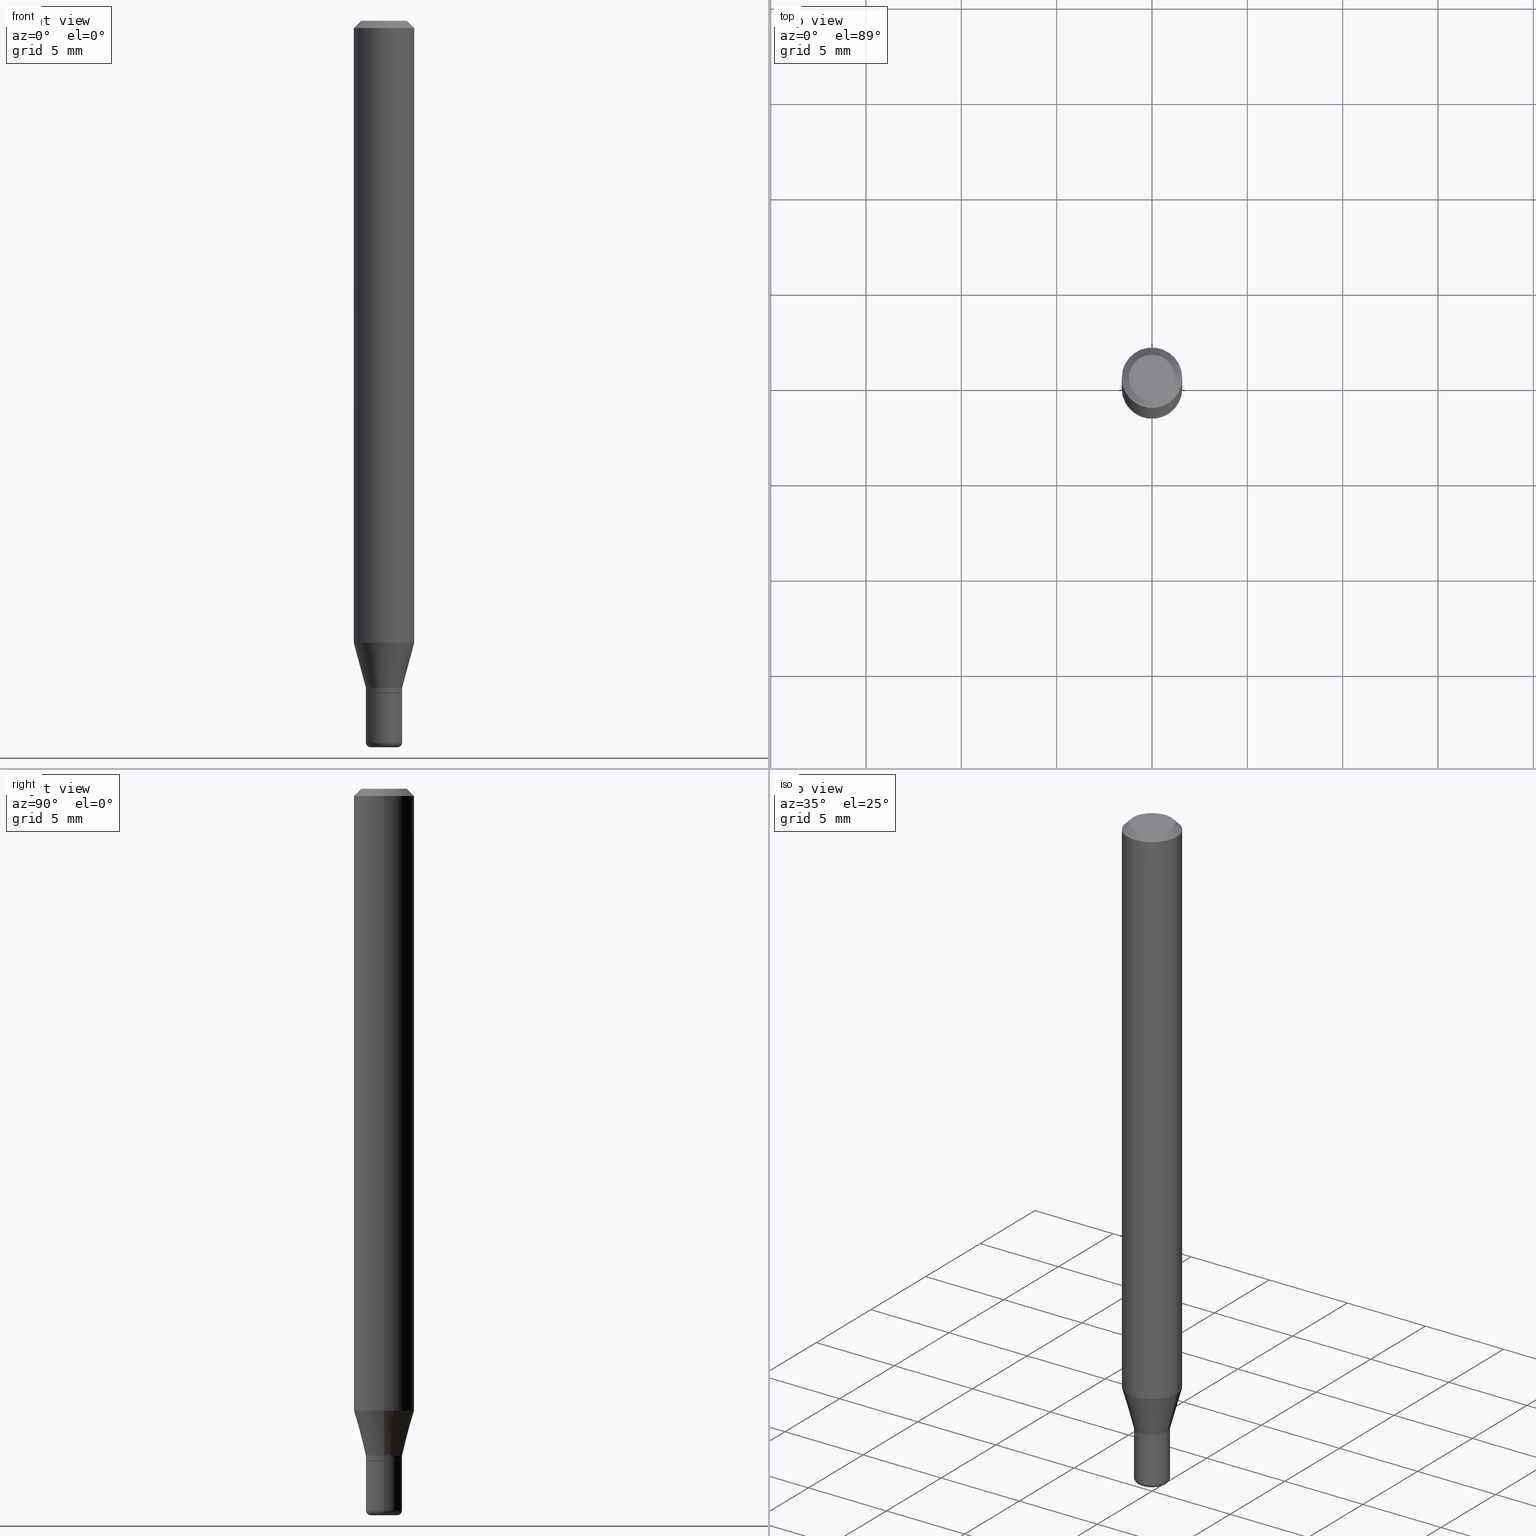
[diagram: canonical four-view strip — front | top / right | iso, engineering-drawing reading convention]
A machine part, canonical four-view strip (front | top / right | iso — engineering-drawing reading convention). The complete STEP part file that produces these views, byte-faithful:
ISO-10303-21;
HEADER;
FILE_DESCRIPTION (( 'STEP AP203' ),
    '1' );
FILE_NAME ('08553.STEP',
    '2024-02-29T19:46:23',
    ( '' ),
    ( '' ),
    'SwSTEP 2.0',
    'SolidWorks 2023',
    '' );
FILE_SCHEMA (( 'CONFIG_CONTROL_DESIGN' ));
ENDSEC;

DATA;
#1 =( LENGTH_UNIT ( ) NAMED_UNIT ( * ) SI_UNIT ( $, .METRE. ) );
#2 = CARTESIAN_POINT ( 'NONE',  ( -0.03699999999999997041, -4.581529545413629161E-15, -1.387500000000000178 ) ) ;
#3 = CARTESIAN_POINT ( 'NONE',  ( 3.643748521215853910E-29, -5.202307194876288105E-15, -1.490000000000000213 ) ) ;
#4 = EDGE_CURVE ( 'NONE', #370, #147, #41, .T. ) ;
#5 = ADVANCED_FACE ( 'NONE', ( #283 ), #440, .F. ) ;
#6 = CARTESIAN_POINT ( 'NONE',  ( 3.393087968581877252E-29, -4.844430357644865674E-15, -1.387500000000000178 ) ) ;
#7 = ORIENTED_EDGE ( 'NONE', *, *, #471, .T. ) ;
#8 = DIRECTION ( 'NONE',  ( 0.7071067811866199593, -2.468850131083015945E-15, 0.7071067811864750752 ) ) ;
#9 = ORIENTED_EDGE ( 'NONE', *, *, #400, .T. ) ;
#10 = CONICAL_SURFACE ( 'NONE', #369, 0.03699999999999997041, 0.7853981633975507526 ) ;
#11 = DATE_TIME_ROLE ( 'classification_date' ) ;
#12 = EDGE_CURVE ( 'NONE', #150, #106, #495, .T. ) ;
#13 = APPROVAL_STATUS ( 'not_yet_approved' ) ;
#14 = EDGE_LOOP ( 'NONE', ( #199, #230, #329, #449 ) ) ;
#15 = COORDINATED_UNIVERSAL_TIME_OFFSET ( 5, 0, .BEHIND. ) ;
#16 = DIRECTION ( 'NONE',  ( -2.445468806185136597E-29, 3.491481338843145583E-15, 1.000000000000000000 ) ) ;
#17 = DIRECTION ( 'NONE',  ( 1.000000000000000000, -6.982962677686266711E-15, 0.000000000000000000 ) ) ;
#18 = AXIS2_PLACEMENT_3D ( 'NONE', #424, #113, #145 ) ;
#19 = CIRCLE ( 'NONE', #309, 0.02750000000000000014 ) ;
#20 = PERSON_AND_ORGANIZATION_ROLE ( 'creator' ) ;
#21 = SECURITY_CLASSIFICATION ( '', '', #295 ) ;
#22 = CARTESIAN_POINT ( 'NONE',  ( 3.316907271900976589E-16, 0.04750000000000000749, -2.925296391183627249E-17 ) ) ;
#23 = CARTESIAN_POINT ( 'NONE',  ( 3.367410546116933466E-29, -4.807769803587011733E-15, -1.377000000000000002 ) ) ;
#24 = DIRECTION ( 'NONE',  ( -2.445468806185136877E-29, 3.491481338843145188E-15, 1.000000000000000000 ) ) ;
#25 = ADVANCED_BREP_SHAPE_REPRESENTATION ( '08553', ( #402, #419, #427 ), #504 ) ;
#26 = VERTEX_POINT ( 'NONE', #508 ) ;
#27 = AXIS2_PLACEMENT_3D ( 'NONE', #22, #211, #500 ) ;
#28 = DIRECTION ( 'NONE',  ( -2.445468806185136597E-29, 3.491481338843145583E-15, 1.000000000000000000 ) ) ;
#29 = CARTESIAN_POINT ( 'NONE',  ( 0.02750000000000000014, -5.429253481901091458E-15, -1.500000000000000222 ) ) ;
#30 = DIRECTION ( 'NONE',  ( -2.445468806185136597E-29, 3.491481338843145583E-15, 1.000000000000000000 ) ) ;
#31 = CARTESIAN_POINT ( 'NONE',  ( 0.03749999999999997780, -2.618611004132348537E-16, 1.828566290923474521E-30 ) ) ;
#32 = CARTESIAN_POINT ( 'NONE',  ( 0.000000000000000000, 0.000000000000000000, 0.000000000000000000 ) ) ;
#33 = AXIS2_PLACEMENT_3D ( 'NONE', #284, #318, #441 ) ;
#34 = EDGE_LOOP ( 'NONE', ( #506, #75, #217, #116 ) ) ;
#35 = AXIS2_PLACEMENT_3D ( 'NONE', #111, #515, #460 ) ;
#36 = ORIENTED_EDGE ( 'NONE', *, *, #335, .F. ) ;
#37 = DIRECTION ( 'NONE',  ( -1.000000000000000000, 6.982962677686266711E-15, 0.000000000000000000 ) ) ;
#38 = ORIENTED_EDGE ( 'NONE', *, *, #12, .T. ) ;
#39 = DIRECTION ( 'NONE',  ( -2.445468806185136597E-29, 3.491481338843145583E-15, 1.000000000000000000 ) ) ;
#40 = CC_DESIGN_PERSON_AND_ORGANIZATION_ASSIGNMENT ( #249, #20, ( #98 ) ) ;
#41 = LINE ( 'NONE', #2, #334 ) ;
#42 = PLANE ( 'NONE',  #296 ) ;
#43 = CLOSED_SHELL ( 'NONE', ( #429, #319, #496, #372, #103, #203, #317, #459, #5, #168, #311, #516 ) ) ;
#44 = ADVANCED_FACE ( 'NONE', ( #100 ), #484, .T. ) ;
#45 = CARTESIAN_POINT ( 'NONE',  ( 3.668203209277632395E-31, -5.237222008264614861E-17, -0.01499999999999970281 ) ) ;
#46 = CYLINDRICAL_SURFACE ( 'NONE', #503, 0.03749999999999997086 ) ;
#47 = EDGE_CURVE ( 'NONE', #388, #312, #76, .T. ) ;
#48 = LINE ( 'NONE', #494, #379 ) ;
#49 = ADVANCED_FACE ( 'NONE', ( #447 ), #360, .T. ) ;
#50 = COORDINATED_UNIVERSAL_TIME_OFFSET ( 5, 0, .BEHIND. ) ;
#51 = AXIS2_PLACEMENT_3D ( 'NONE', #45, #390, #37 ) ;
#52 = VERTEX_POINT ( 'NONE', #88 ) ;
#53 = APPROVAL_ROLE ( '' ) ;
#54 = LINE ( 'NONE', #206, #512 ) ;
#55 = COORDINATED_UNIVERSAL_TIME_OFFSET ( 5, 0, .BEHIND. ) ;
#56 = LOCAL_TIME ( 14, 46, 23.00000000000000000, #55 ) ;
#57 = ORIENTED_EDGE ( 'NONE', *, *, #4, .T. ) ;
#58 = DIRECTION ( 'NONE',  ( -2.445468806185136597E-29, 3.491481338843145583E-15, 1.000000000000000000 ) ) ;
#59 = CARTESIAN_POINT ( 'NONE',  ( -0.03699999999999997041, -4.578880318239517960E-15, -1.387500000000000178 ) ) ;
#60 = ORIENTED_EDGE ( 'NONE', *, *, #12, .F. ) ;
#61 = ORIENTED_EDGE ( 'NONE', *, *, #222, .T. ) ;
#62 = CIRCLE ( 'NONE', #79, 0.03749999999999997086 ) ;
#63 = DIRECTION ( 'NONE',  ( -2.445468806185136877E-29, 3.491481338843145188E-15, 1.000000000000000000 ) ) ;
#64 = ORIENTED_EDGE ( 'NONE', *, *, #83, .F. ) ;
#65 = CYLINDRICAL_SURFACE ( 'NONE', #154, 0.03749999999999997086 ) ;
#66 = CARTESIAN_POINT ( 'NONE',  ( 0.03749999999999997086, -2.618611004132348044E-16, 1.828566290923474521E-30 ) ) ;
#67 = ORIENTED_EDGE ( 'NONE', *, *, #265, .T. ) ;
#68 = CARTESIAN_POINT ( 'NONE',  ( -0.03749999999999997780, -4.289618613828946171E-15, -1.377000000000000002 ) ) ;
#69 = CARTESIAN_POINT ( 'NONE',  ( 3.643748521215853910E-29, -5.202307194876288105E-15, -1.490000000000000213 ) ) ;
#70 = AXIS2_PLACEMENT_3D ( 'NONE', #511, #142, #470 ) ;
#71 = PRODUCT_RELATED_PRODUCT_CATEGORY ( 'detail', '', ( #241 ) ) ;
#72 = CARTESIAN_POINT ( 'NONE',  ( 3.391865234178785011E-29, -4.842684616975444171E-15, -1.387000000000000233 ) ) ;
#73 = VERTEX_POINT ( 'NONE', #167 ) ;
#74 = CARTESIAN_POINT ( 'NONE',  ( 3.367410546116933466E-29, -4.807769803587011733E-15, -1.377000000000000002 ) ) ;
#75 = ORIENTED_EDGE ( 'NONE', *, *, #229, .T. ) ;
#76 = LINE ( 'NONE', #478, #501 ) ;
#77 = CARTESIAN_POINT ( 'NONE',  ( 3.668203209277632395E-31, -5.237222008264614861E-17, -0.01499999999999970281 ) ) ;
#78 = VECTOR ( 'NONE', #464, 39.37007874015748143 ) ;
#79 = AXIS2_PLACEMENT_3D ( 'NONE', #407, #102, #97 ) ;
#80 = PLANE ( 'NONE',  #367 ) ;
#81 = CARTESIAN_POINT ( 'NONE',  ( 0.000000000000000000, 0.000000000000000000, 0.000000000000000000 ) ) ;
#82 = EDGE_CURVE ( 'NONE', #106, #192, #48, .T. ) ;
#83 = EDGE_CURVE ( 'NONE', #312, #174, #396, .T. ) ;
#84 = CARTESIAN_POINT ( 'NONE',  ( 3.393087968581877252E-29, -4.844430357644865674E-15, -1.387500000000000178 ) ) ;
#85 = CALENDAR_DATE ( 2024, 29, 2 ) ;
#86 = DATE_AND_TIME ( #85, #246 ) ;
#87 = ORIENTED_EDGE ( 'NONE', *, *, #339, .T. ) ;
#88 = CARTESIAN_POINT ( 'NONE',  ( 0.03749999999999999861, -5.106291458058100676E-15, -1.387500000000000178 ) ) ;
#89 = AXIS2_PLACEMENT_3D ( 'NONE', #218, #376, #298 ) ;
#90 = AXIS2_PLACEMENT_3D ( 'NONE', #505, #377, #179 ) ;
#91 = DIRECTION ( 'NONE',  ( 1.000000000000000000, -6.982962677686272233E-15, 0.000000000000000000 ) ) ;
#92 = PERSON_AND_ORGANIZATION_ROLE ( 'design_owner' ) ;
#93 = EDGE_CURVE ( 'NONE', #139, #150, #231, .T. ) ;
#94 = CARTESIAN_POINT ( 'NONE',  ( -0.06250000000000000000, -1.823101980106750651E-15, -0.01499999999999970281 ) ) ;
#95 = APPROVAL_DATE_TIME ( #492, #143 ) ;
#96 = APPROVAL ( #454, 'UNSPECIFIED' ) ;
#97 = DIRECTION ( 'NONE',  ( 1.000000000000000000, -6.982962677686273810E-15, 0.000000000000000000 ) ) ;
#98 = PRODUCT_DEFINITION_FORMATION_WITH_SPECIFIED_SOURCE ( 'ANY', '', #241, .NOT_KNOWN. ) ;
#99 = AXIS2_PLACEMENT_3D ( 'NONE', #263, #374, #137 ) ;
#100 = FACE_OUTER_BOUND ( 'NONE', #375, .T. ) ;
#101 = CARTESIAN_POINT ( 'NONE',  ( 0.03749999999999994310, -5.464168295289523107E-15, -1.490000000000000213 ) ) ;
#102 = DIRECTION ( 'NONE',  ( -2.445468806185136597E-29, 3.491481338843145583E-15, 1.000000000000000000 ) ) ;
#103 = ADVANCED_FACE ( 'NONE', ( #215 ), #151, .T. ) ;
#104 = FACE_OUTER_BOUND ( 'NONE', #381, .T. ) ;
#105 = DIRECTION ( 'NONE',  ( 1.000000000000000000, -6.982962677686265922E-15, 4.876176775795935793E-29 ) ) ;
#106 = VERTEX_POINT ( 'NONE', #412 ) ;
#107 = LINE ( 'NONE', #387, #232 ) ;
#108 = VECTOR ( 'NONE', #401, 39.37007874015748143 ) ;
#109 = FACE_OUTER_BOUND ( 'NONE', #202, .T. ) ;
#110 = ORIENTED_EDGE ( 'NONE', *, *, #409, .T. ) ;
#111 = CARTESIAN_POINT ( 'NONE',  ( 0.02749999999999999667, -5.394338668512660598E-15, -1.490000000000000213 ) ) ;
#112 = CARTESIAN_POINT ( 'NONE',  ( -0.03749999999999999861, -4.756915250350539872E-15, -1.387500000000000178 ) ) ;
#113 = DIRECTION ( 'NONE',  ( -2.445468806185136597E-29, 3.491481338843145583E-15, 1.000000000000000000 ) ) ;
#114 = DIRECTION ( 'NONE',  ( -2.445468806185136597E-29, 3.491481338843145583E-15, 1.000000000000000000 ) ) ;
#115 = AXIS2_PLACEMENT_3D ( 'NONE', #69, #393, #352 ) ;
#116 = ORIENTED_EDGE ( 'NONE', *, *, #132, .F. ) ;
#117 = LOCAL_TIME ( 14, 46, 23.00000000000000000, #50 ) ;
#118 = DIRECTION ( 'NONE',  ( 1.000000000000000000, -6.982962677686279332E-15, 0.000000000000000000 ) ) ;
#119 = ORIENTED_EDGE ( 'NONE', *, *, #148, .T. ) ;
#120 = DIRECTION ( 'NONE',  ( -2.445468806185136877E-29, 3.491481338843145188E-15, 1.000000000000000000 ) ) ;
#121 = CARTESIAN_POINT ( 'NONE',  ( 3.668203209277704895E-29, -5.237222008264718177E-15, -1.500000000000000222 ) ) ;
#122 = EDGE_CURVE ( 'NONE', #213, #388, #386, .T. ) ;
#123 = DIRECTION ( 'NONE',  ( -2.445468806185136597E-29, 3.491481338843145583E-15, 1.000000000000000000 ) ) ;
#124 = CONICAL_SURFACE ( 'NONE', #469, 0.03749999999999997780, 0.2617993877991492413 ) ;
#125 = CIRCLE ( 'NONE', #171, 0.03749999999999997780 ) ;
#126 = COORDINATED_UNIVERSAL_TIME_OFFSET ( 5, 0, .BEHIND. ) ;
#127 = COORDINATED_UNIVERSAL_TIME_OFFSET ( 5, 0, .BEHIND. ) ;
#128 = DIRECTION ( 'NONE',  ( -2.445468806185136877E-29, 3.491481338843145188E-15, 1.000000000000000000 ) ) ;
#129 = LOCAL_TIME ( 14, 46, 23.00000000000000000, #15 ) ;
#130 = PERSON ( 'UNSPECIFIED', 'UNSPECIFIED', 'UNSPECIFIED', ('UNSPECIFIED'), ('UNSPECIFIED'), ('UNSPECIFIED') ) ;
#131 = DATE_AND_TIME ( #499, #117 ) ;
#132 = EDGE_CURVE ( 'NONE', #73, #388, #468, .T. ) ;
#133 = ORIENTED_EDGE ( 'NONE', *, *, #452, .F. ) ;
#134 = AXIS2_PLACEMENT_3D ( 'NONE', #348, #260, #266 ) ;
#135 = CIRCLE ( 'NONE', #35, 0.009999999999999948166 ) ;
#136 = CARTESIAN_POINT ( 'NONE',  ( 3.393087968581877252E-29, -4.844430357644865674E-15, -1.387500000000000178 ) ) ;
#137 = DIRECTION ( 'NONE',  ( 1.000000000000000000, -6.982962677686266711E-15, 0.000000000000000000 ) ) ;
#138 = CARTESIAN_POINT ( 'NONE',  ( 0.03749999999999997086, -5.104545717388679172E-15, -1.387000000000000233 ) ) ;
#139 = VERTEX_POINT ( 'NONE', #29 ) ;
#140 = LINE ( 'NONE', #31, #485 ) ;
#141 = AXIS2_PLACEMENT_3D ( 'NONE', #345, #30, #343 ) ;
#142 = DIRECTION ( 'NONE',  ( -2.445468806185136597E-29, 3.491481338843145583E-15, 1.000000000000000000 ) ) ;
#143 = APPROVAL ( #415, 'UNSPECIFIED' ) ;
#144 = APPROVAL_PERSON_ORGANIZATION ( #328, #172, #326 ) ;
#145 = DIRECTION ( 'NONE',  ( 1.000000000000000000, -6.982962677686268288E-15, 0.000000000000000000 ) ) ;
#146 = DIRECTION ( 'NONE',  ( 1.000000000000000000, -6.982962677686259611E-15, 0.000000000000000000 ) ) ;
#147 = VERTEX_POINT ( 'NONE', #182 ) ;
#148 = EDGE_CURVE ( 'NONE', #52, #192, #242, .T. ) ;
#149 = DIRECTION ( 'NONE',  ( -2.445468806185136597E-29, 3.491481338843145583E-15, 1.000000000000000000 ) ) ;
#150 = VERTEX_POINT ( 'NONE', #275 ) ;
#151 = CONICAL_SURFACE ( 'NONE', #451, 0.03749999999999997780, 0.2617993877991492413 ) ;
#152 = FACE_OUTER_BOUND ( 'NONE', #437, .T. ) ;
#153 = VERTEX_POINT ( 'NONE', #68 ) ;
#154 = AXIS2_PLACEMENT_3D ( 'NONE', #421, #342, #509 ) ;
#155 = DIRECTION ( 'NONE',  ( -0.7071067811866199593, 7.493145998870616062E-15, 0.7071067811864750752 ) ) ;
#156 = DIRECTION ( 'NONE',  ( 1.000000000000000000, -6.982962677686268288E-15, 0.000000000000000000 ) ) ;
#157 = DIRECTION ( 'NONE',  ( -2.445468806185136597E-29, 3.491481338843145583E-15, 1.000000000000000000 ) ) ;
#158 = DIRECTION ( 'NONE',  ( -2.445468806185136597E-29, 3.491481338843145583E-15, 1.000000000000000000 ) ) ;
#159 = APPROVAL_DATE_TIME ( #86, #172 ) ;
#160 = ORIENTED_EDGE ( 'NONE', *, *, #325, .F. ) ;
#161 = AXIS2_PLACEMENT_3D ( 'NONE', #456, #254, #17 ) ;
#162 = ORIENTED_EDGE ( 'NONE', *, *, #507, .F. ) ;
#163 = DIRECTION ( 'NONE',  ( -0.7071067811865479058, 2.468850131082261005E-15, -0.7071067811865471286 ) ) ;
#164 = AXIS2_PLACEMENT_3D ( 'NONE', #420, #462, #146 ) ;
#165 =( NAMED_UNIT ( * ) PLANE_ANGLE_UNIT ( ) SI_UNIT ( $, .RADIAN. ) );
#166 = ORIENTED_EDGE ( 'NONE', *, *, #265, .F. ) ;
#167 = CARTESIAN_POINT ( 'NONE',  ( -0.06250000000000000000, -4.037920949980918021E-15, -1.283698729810778039 ) ) ;
#168 = ADVANCED_FACE ( 'NONE', ( #243 ), #80, .F. ) ;
#169 = CARTESIAN_POINT ( 'NONE',  ( 0.000000000000000000, 0.000000000000000000, 0.000000000000000000 ) ) ;
#170 = CARTESIAN_POINT ( 'NONE',  ( 3.668203209277704895E-29, -5.237222008264718177E-15, -1.500000000000000222 ) ) ;
#171 = AXIS2_PLACEMENT_3D ( 'NONE', #422, #58, #305 ) ;
#172 = APPROVAL ( #13, 'UNSPECIFIED' ) ;
#173 = SHAPE_DEFINITION_REPRESENTATION ( #488, #25 ) ;
#174 = VERTEX_POINT ( 'NONE', #94 ) ;
#175 = ORIENTED_EDGE ( 'NONE', *, *, #480, .F. ) ;
#176 = LINE ( 'NONE', #66, #316 ) ;
#177 = ORIENTED_EDGE ( 'NONE', *, *, #384, .T. ) ;
#178 = CONICAL_SURFACE ( 'NONE', #257, 0.06250000000000000000, 0.7853981633974488341 ) ;
#179 = DIRECTION ( 'NONE',  ( 1.000000000000000000, -6.982962677686266711E-15, 4.876176775795935793E-29 ) ) ;
#180 = ORIENTED_EDGE ( 'NONE', *, *, #514, .F. ) ;
#181 = EDGE_CURVE ( 'NONE', #73, #174, #413, .T. ) ;
#182 = CARTESIAN_POINT ( 'NONE',  ( -0.03749999999999997086, -4.576231091065406759E-15, -1.387000000000000233 ) ) ;
#183 = CARTESIAN_POINT ( 'NONE',  ( 0.04750000000000000749, -4.035134999187568762E-16, 2.731847993664288856E-16 ) ) ;
#184 = CC_DESIGN_PERSON_AND_ORGANIZATION_ASSIGNMENT ( #486, #92, ( #241 ) ) ;
#185 = DIRECTION ( 'NONE',  ( 1.000000000000000000, -6.982962677686259611E-15, 0.000000000000000000 ) ) ;
#186 = CC_DESIGN_DATE_AND_TIME_ASSIGNMENT ( #131, #11, ( #21 ) ) ;
#187 = CARTESIAN_POINT ( 'NONE',  ( 0.03749999999999997780, -5.069630904000246734E-15, -1.377000000000000002 ) ) ;
#188 = FACE_OUTER_BOUND ( 'NONE', #356, .T. ) ;
#189 = FACE_OUTER_BOUND ( 'NONE', #428, .T. ) ;
#190 = FACE_OUTER_BOUND ( 'NONE', #34, .T. ) ;
#191 = DIRECTION ( 'NONE',  ( 1.000000000000000000, -6.982962677686272233E-15, 0.000000000000000000 ) ) ;
#192 = VERTEX_POINT ( 'NONE', #112 ) ;
#193 = CLOSED_SHELL ( 'NONE', ( #49, #482, #286, #366, #44, #491 ) ) ;
#194 = FACE_OUTER_BOUND ( 'NONE', #238, .T. ) ;
#195 = CIRCLE ( 'NONE', #99, 0.06250000000000000000 ) ;
#196 = CC_DESIGN_APPROVAL ( #172, ( #98 ) ) ;
#197 = DIRECTION ( 'NONE',  ( -2.445468806185136597E-29, 3.491481338843145583E-15, 1.000000000000000000 ) ) ;
#198 = DIRECTION ( 'NONE',  ( 2.445468806185136597E-29, -3.491481338843145583E-15, -1.000000000000000000 ) ) ;
#199 = ORIENTED_EDGE ( 'NONE', *, *, #471, .F. ) ;
#200 = CIRCLE ( 'NONE', #115, 0.03749999999999994310 ) ;
#201 =( NAMED_UNIT ( * ) SI_UNIT ( $, .STERADIAN. ) SOLID_ANGLE_UNIT ( ) );
#202 = EDGE_LOOP ( 'NONE', ( #291, #353, #463, #487 ) ) ;
#203 = ADVANCED_FACE ( 'NONE', ( #190 ), #124, .T. ) ;
#204 = MECHANICAL_CONTEXT ( 'NONE', #383, 'mechanical' ) ;
#205 = CALENDAR_DATE ( 2024, 29, 2 ) ;
#206 = CARTESIAN_POINT ( 'NONE',  ( -0.06250000000000000000, 3.840629472727455270E-16, -0.01499999999999970281 ) ) ;
#207 = VECTOR ( 'NONE', #308, 39.37007874015748143 ) ;
#208 = AXIS2_PLACEMENT_3D ( 'NONE', #216, #28, #261 ) ;
#209 = EDGE_CURVE ( 'NONE', #26, #174, #54, .T. ) ;
#210 = CC_DESIGN_APPROVAL ( #143, ( #336 ) ) ;
#211 = DIRECTION ( 'NONE',  ( 2.438088387897960049E-29, -3.491481338843145188E-15, -1.000000000000000000 ) ) ;
#212 = DATE_AND_TIME ( #205, #56 ) ;
#213 = VERTEX_POINT ( 'NONE', #294 ) ;
#214 = APPLICATION_CONTEXT ( 'configuration controlled 3d designs of mechanical parts and assemblies' ) ;
#215 = FACE_OUTER_BOUND ( 'NONE', #476, .T. ) ;
#216 = CARTESIAN_POINT ( 'NONE',  ( -6.680649051745406845E-45, 9.538196290434862081E-31, 2.731847993664263218E-16 ) ) ;
#217 = ORIENTED_EDGE ( 'NONE', *, *, #122, .T. ) ;
#218 = CARTESIAN_POINT ( 'NONE',  ( -0.02749999999999999667, -5.006907942542259986E-15, -1.490000000000000213 ) ) ;
#219 = CYLINDRICAL_SURFACE ( 'NONE', #327, 0.06250000000000000000 ) ;
#220 = EDGE_LOOP ( 'NONE', ( #240, #418, #64, #406 ) ) ;
#221 = AXIS2_PLACEMENT_3D ( 'NONE', #473, #197, #517 ) ;
#222 = EDGE_CURVE ( 'NONE', #147, #306, #62, .T. ) ;
#223 = AXIS2_PLACEMENT_3D ( 'NONE', #248, #39, #281 ) ;
#224 = DIRECTION ( 'NONE',  ( -2.445468806185136597E-29, 3.491481338843145583E-15, 1.000000000000000000 ) ) ;
#225 = EDGE_CURVE ( 'NONE', #174, #312, #195, .T. ) ;
#226 = ORIENTED_EDGE ( 'NONE', *, *, #222, .F. ) ;
#227 = CYLINDRICAL_SURFACE ( 'NONE', #90, 0.06250000000000000000 ) ;
#228 = DIRECTION ( 'NONE',  ( -0.2588190451025205729, 5.211531920934545520E-15, 0.9659258262890684232 ) ) ;
#229 = EDGE_CURVE ( 'NONE', #153, #213, #125, .T. ) ;
#230 = ORIENTED_EDGE ( 'NONE', *, *, #384, .F. ) ;
#231 = CIRCLE ( 'NONE', #378, 0.02750000000000000014 ) ;
#232 = VECTOR ( 'NONE', #24, 39.37007874015748143 ) ;
#233 = CYLINDRICAL_SURFACE ( 'NONE', #223, 0.03749999999999997780 ) ;
#234 = LOCAL_TIME ( 14, 46, 23.00000000000000000, #126 ) ;
#235 = ORIENTED_EDGE ( 'NONE', *, *, #335, .T. ) ;
#236 = VERTEX_POINT ( 'NONE', #385 ) ;
#237 = LENGTH_MEASURE_WITH_UNIT ( LENGTH_MEASURE( 0.02539999999999999897 ), #1 );
#238 = EDGE_LOOP ( 'NONE', ( #166, #61, #87, #337 ) ) ;
#239 = DIRECTION ( 'NONE',  ( -2.438088387897960049E-29, 3.491481338843145188E-15, 1.000000000000000000 ) ) ;
#240 = ORIENTED_EDGE ( 'NONE', *, *, #325, .T. ) ;
#241 = PRODUCT ( '08553', '08553', '', ( #204 ) ) ;
#242 = CIRCLE ( 'NONE', #18, 0.03749999999999999861 ) ;
#243 = FACE_OUTER_BOUND ( 'NONE', #414, .T. ) ;
#244 = CARTESIAN_POINT ( 'NONE',  ( 0.000000000000000000, 0.000000000000000000, 0.000000000000000000 ) ) ;
#245 = CIRCLE ( 'NONE', #70, 0.04750000000000000749 ) ;
#246 = LOCAL_TIME ( 14, 46, 23.00000000000000000, #127 ) ;
#247 = EDGE_CURVE ( 'NONE', #394, #52, #176, .T. ) ;
#248 = CARTESIAN_POINT ( 'NONE',  ( 0.000000000000000000, 0.000000000000000000, 0.000000000000000000 ) ) ;
#249 = PERSON_AND_ORGANIZATION ( #130, #302 ) ;
#250 = ORIENTED_EDGE ( 'NONE', *, *, #82, .T. ) ;
#251 = EDGE_CURVE ( 'NONE', #236, #370, #301, .T. ) ;
#252 = ORIENTED_EDGE ( 'NONE', *, *, #480, .T. ) ;
#253 = AXIS2_PLACEMENT_3D ( 'NONE', #136, #224, #185 ) ;
#254 = DIRECTION ( 'NONE',  ( -2.445468806185136597E-29, 3.491481338843145583E-15, 1.000000000000000000 ) ) ;
#255 = CALENDAR_DATE ( 2024, 29, 2 ) ;
#256 = PERSON_AND_ORGANIZATION_ROLE ( 'design_supplier' ) ;
#257 = AXIS2_PLACEMENT_3D ( 'NONE', #77, #198, #314 ) ;
#258 = ORIENTED_EDGE ( 'NONE', *, *, #392, .F. ) ;
#259 = CARTESIAN_POINT ( 'NONE',  ( 0.06250000000000000000, -4.918445327186372307E-15, -1.283698729810778039 ) ) ;
#260 = DIRECTION ( 'NONE',  ( -2.445468806185136597E-29, 3.491481338843145583E-15, 1.000000000000000000 ) ) ;
#261 = DIRECTION ( 'NONE',  ( 1.000000000000000000, -6.982962677686266711E-15, 4.852736867747365086E-29 ) ) ;
#262 = EDGE_CURVE ( 'NONE', #153, #73, #502, .T. ) ;
#263 = CARTESIAN_POINT ( 'NONE',  ( 3.668203209277632395E-31, -5.237222008264614861E-17, -0.01499999999999970281 ) ) ;
#264 = ORIENTED_EDGE ( 'NONE', *, *, #436, .T. ) ;
#265 = EDGE_CURVE ( 'NONE', #147, #153, #107, .T. ) ;
#266 = DIRECTION ( 'NONE',  ( 1.000000000000000000, -6.982962677686262766E-15, 0.000000000000000000 ) ) ;
#267 = PLANE ( 'NONE',  #453 ) ;
#268 = ORIENTED_EDGE ( 'NONE', *, *, #93, .F. ) ;
#269 = CONICAL_SURFACE ( 'NONE', #253, 0.03699999999999997041, 0.7853981633975507526 ) ;
#270 = CC_DESIGN_SECURITY_CLASSIFICATION ( #21, ( #98 ) ) ;
#271 = DIRECTION ( 'NONE',  ( 1.000000000000000000, -6.982962677686259611E-15, 0.000000000000000000 ) ) ;
#272 = ORIENTED_EDGE ( 'NONE', *, *, #83, .T. ) ;
#273 = CARTESIAN_POINT ( 'NONE',  ( 3.367410546116933466E-29, -4.807769803587011733E-15, -1.377000000000000002 ) ) ;
#274 = FACE_OUTER_BOUND ( 'NONE', #445, .T. ) ;
#275 = CARTESIAN_POINT ( 'NONE',  ( -0.02750000000000000014, -4.988838212448470770E-15, -1.500000000000000222 ) ) ;
#276 = CARTESIAN_POINT ( 'NONE',  ( 0.03699999999999997041, -5.102799976719256880E-15, -1.387500000000000178 ) ) ;
#277 = AXIS2_PLACEMENT_3D ( 'NONE', #324, #158, #450 ) ;
#278 = CONICAL_SURFACE ( 'NONE', #51, 0.06250000000000000000, 0.7853981633974488341 ) ;
#279 = APPROVAL_PERSON_ORGANIZATION ( #411, #96, #53 ) ;
#280 = ORIENTED_EDGE ( 'NONE', *, *, #400, .F. ) ;
#281 = DIRECTION ( 'NONE',  ( 1.000000000000000000, -6.982962677686266711E-15, 4.876176775795934672E-29 ) ) ;
#282 = ORIENTED_EDGE ( 'NONE', *, *, #392, .T. ) ;
#283 = FACE_OUTER_BOUND ( 'NONE', #364, .T. ) ;
#284 = CARTESIAN_POINT ( 'NONE',  ( 3.643748521215853910E-29, -5.202307194876288105E-15, -1.490000000000000213 ) ) ;
#285 = DIRECTION ( 'NONE',  ( 1.000000000000000000, -6.982962677686273810E-15, 0.000000000000000000 ) ) ;
#286 = ADVANCED_FACE ( 'NONE', ( #274 ), #267, .F. ) ;
#287 = CARTESIAN_POINT ( 'NONE',  ( 0.06250000000000000000, -4.811533449433669144E-16, -0.01499999999999970281 ) ) ;
#288 = AXIS2_PLACEMENT_3D ( 'NONE', #72, #123, #285 ) ;
#289 = CC_DESIGN_DATE_AND_TIME_ASSIGNMENT ( #297, #446, ( #336 ) ) ;
#290 = CALENDAR_DATE ( 2024, 29, 2 ) ;
#291 = ORIENTED_EDGE ( 'NONE', *, *, #181, .F. ) ;
#292 = PERSON_AND_ORGANIZATION ( #130, #302 ) ;
#293 = ORIENTED_EDGE ( 'NONE', *, *, #122, .F. ) ;
#294 = CARTESIAN_POINT ( 'NONE',  ( 0.03749999999999997780, -5.069630904000246734E-15, -1.377000000000000002 ) ) ;
#295 = SECURITY_CLASSIFICATION_LEVEL ( 'unclassified' ) ;
#296 = AXIS2_PLACEMENT_3D ( 'NONE', #444, #239, #398 ) ;
#297 = DATE_AND_TIME ( #290, #234 ) ;
#298 = DIRECTION ( 'NONE',  ( -1.000000000000000000, 7.105427357600962416E-15, 0.000000000000000000 ) ) ;
#299 = ORIENTED_EDGE ( 'NONE', *, *, #339, .F. ) ;
#300 = DIRECTION ( 'NONE',  ( -2.438088387897960049E-29, 3.491481338843145188E-15, 1.000000000000000000 ) ) ;
#301 = CIRCLE ( 'NONE', #164, 0.03699999999999997041 ) ;
#302 = ORGANIZATION ( 'UNSPECIFIED', 'UNSPECIFIED', '' ) ;
#303 = ORIENTED_EDGE ( 'NONE', *, *, #4, .F. ) ;
#304 = DIRECTION ( 'NONE',  ( 1.000000000000000000, -6.982962677686266711E-15, 4.876176775795935793E-29 ) ) ;
#305 = DIRECTION ( 'NONE',  ( 1.000000000000000000, -6.982962677686272233E-15, 0.000000000000000000 ) ) ;
#306 = VERTEX_POINT ( 'NONE', #138 ) ;
#307 = CARTESIAN_POINT ( 'NONE',  ( 0.06250000000000000000, -4.888073874380378612E-16, -0.01499999999999970281 ) ) ;
#308 = DIRECTION ( 'NONE',  ( -2.445468806185136877E-29, 3.491481338843145188E-15, 1.000000000000000000 ) ) ;
#309 = AXIS2_PLACEMENT_3D ( 'NONE', #121, #157, #118 ) ;
#310 = CARTESIAN_POINT ( 'NONE',  ( 3.393087968581877252E-29, -4.844430357644865674E-15, -1.387500000000000178 ) ) ;
#311 = ADVANCED_FACE ( 'NONE', ( #338 ), #269, .T. ) ;
#312 = VERTEX_POINT ( 'NONE', #307 ) ;
#313 =( CONVERSION_BASED_UNIT ( 'INCH', #237 ) LENGTH_UNIT ( ) NAMED_UNIT ( #431 ) );
#314 = DIRECTION ( 'NONE',  ( -1.000000000000000000, 6.982962677686266711E-15, 0.000000000000000000 ) ) ;
#315 = ORIENTED_EDGE ( 'NONE', *, *, #209, .F. ) ;
#316 = VECTOR ( 'NONE', #63, 39.37007874015748143 ) ;
#317 = ADVANCED_FACE ( 'NONE', ( #109 ), #219, .T. ) ;
#318 = DIRECTION ( 'NONE',  ( -2.445468806185136597E-29, 3.491481338843145583E-15, 1.000000000000000000 ) ) ;
#319 = ADVANCED_FACE ( 'NONE', ( #188 ), #10, .T. ) ;
#320 = DIRECTION ( 'NONE',  ( -2.445468806185136597E-29, 3.491481338843145583E-15, 1.000000000000000000 ) ) ;
#321 = ORIENTED_EDGE ( 'NONE', *, *, #247, .F. ) ;
#322 = FACE_OUTER_BOUND ( 'NONE', #341, .T. ) ;
#323 = ORIENTED_EDGE ( 'NONE', *, *, #262, .T. ) ;
#324 = CARTESIAN_POINT ( 'NONE',  ( 3.643748521215853910E-29, -5.202307194876288105E-15, -1.490000000000000213 ) ) ;
#325 = EDGE_CURVE ( 'NONE', #388, #73, #417, .T. ) ;
#326 = APPROVAL_ROLE ( '' ) ;
#327 = AXIS2_PLACEMENT_3D ( 'NONE', #32, #425, #304 ) ;
#328 = PERSON_AND_ORGANIZATION ( #130, #302 ) ;
#329 = ORIENTED_EDGE ( 'NONE', *, *, #209, .T. ) ;
#330 = PERSON_AND_ORGANIZATION ( #130, #302 ) ;
#331 = ORIENTED_EDGE ( 'NONE', *, *, #416, .F. ) ;
#332 = DESIGN_CONTEXT ( 'detailed design', #214, 'design' ) ;
#333 = PERSON_AND_ORGANIZATION_ROLE ( 'creator' ) ;
#334 = VECTOR ( 'NONE', #155, 39.37007874015748143 ) ;
#335 = EDGE_CURVE ( 'NONE', #346, #26, #397, .T. ) ;
#336 = PRODUCT_DEFINITION ( 'UNKNOWN', '', #98, #332 ) ;
#337 = ORIENTED_EDGE ( 'NONE', *, *, #229, .F. ) ;
#338 = FACE_OUTER_BOUND ( 'NONE', #510, .T. ) ;
#339 = EDGE_CURVE ( 'NONE', #306, #213, #140, .T. ) ;
#340 = AXIS2_PLACEMENT_3D ( 'NONE', #3, #320, #391 ) ;
#341 = EDGE_LOOP ( 'NONE', ( #36, #7, #272, #315 ) ) ;
#342 = DIRECTION ( 'NONE',  ( -2.445468806185136597E-29, 3.491481338843145583E-15, 1.000000000000000000 ) ) ;
#343 = DIRECTION ( 'NONE',  ( 1.000000000000000000, -6.982962677686262766E-15, 0.000000000000000000 ) ) ;
#344 = CARTESIAN_POINT ( 'NONE',  ( -0.06250000000000000000, 4.440892098500626162E-16, -3.074334431409316114E-30 ) ) ;
#345 = CARTESIAN_POINT ( 'NONE',  ( 3.139245200291739433E-29, -4.482010159830980638E-15, -1.283698729810778039 ) ) ;
#346 = VERTEX_POINT ( 'NONE', #183 ) ;
#347 = AXIS2_PLACEMENT_3D ( 'NONE', #74, #442, #191 ) ;
#348 = CARTESIAN_POINT ( 'NONE',  ( 3.139245200291739433E-29, -4.482010159830980638E-15, -1.283698729810778039 ) ) ;
#349 = FACE_OUTER_BOUND ( 'NONE', #220, .T. ) ;
#350 = DIRECTION ( 'NONE',  ( 1.000000000000000000, -6.982962677686266711E-15, 4.876176775795935793E-29 ) ) ;
#351 = CC_DESIGN_PERSON_AND_ORGANIZATION_ASSIGNMENT ( #292, #457, ( #21 ) ) ;
#352 = DIRECTION ( 'NONE',  ( 1.000000000000000000, -6.982962677686278543E-15, 0.000000000000000000 ) ) ;
#353 = ORIENTED_EDGE ( 'NONE', *, *, #132, .T. ) ;
#354 = AXIS2_PLACEMENT_3D ( 'NONE', #81, #114, #355 ) ;
#355 = DIRECTION ( 'NONE',  ( 1.000000000000000000, -6.982962677686266711E-15, 4.876176775795934672E-29 ) ) ;
#356 = EDGE_LOOP ( 'NONE', ( #359, #57, #439, #175 ) ) ;
#357 = CYLINDRICAL_SURFACE ( 'NONE', #354, 0.03749999999999997780 ) ;
#358 = ORIENTED_EDGE ( 'NONE', *, *, #93, .T. ) ;
#359 = ORIENTED_EDGE ( 'NONE', *, *, #251, .T. ) ;
#360 = TOROIDAL_SURFACE ( 'NONE', #277, 0.02749999999999999667, 0.009999999999999948166 ) ;
#361 = DIRECTION ( 'NONE',  ( 0.000000000000000000, 0.000000000000000000, 1.000000000000000000 ) ) ;
#362 = VECTOR ( 'NONE', #8, 39.37007874015748143 ) ;
#363 = PERSON_AND_ORGANIZATION ( #130, #302 ) ;
#364 = EDGE_LOOP ( 'NONE', ( #177, #235 ) ) ;
#365 = DIRECTION ( 'NONE',  ( -2.445468806185136597E-29, 3.491481338843145583E-15, 1.000000000000000000 ) ) ;
#366 = ADVANCED_FACE ( 'NONE', ( #104 ), #65, .T. ) ;
#367 = AXIS2_PLACEMENT_3D ( 'NONE', #84, #300, #105 ) ;
#368 = DIRECTION ( 'NONE',  ( 1.000000000000000000, -6.982962677686279332E-15, 0.000000000000000000 ) ) ;
#369 = AXIS2_PLACEMENT_3D ( 'NONE', #310, #382, #271 ) ;
#370 = VERTEX_POINT ( 'NONE', #59 ) ;
#371 = CC_DESIGN_PERSON_AND_ORGANIZATION_ASSIGNMENT ( #404, #333, ( #336 ) ) ;
#372 = ADVANCED_FACE ( 'NONE', ( #349 ), #227, .T. ) ;
#373 = CARTESIAN_POINT ( 'NONE',  ( 2.618611004132689227E-16, 0.03749999999999515526, -1.387500000000000178 ) ) ;
#374 = DIRECTION ( 'NONE',  ( -2.445468806185136597E-29, 3.491481338843145583E-15, 1.000000000000000000 ) ) ;
#375 = EDGE_LOOP ( 'NONE', ( #60, #9, #282, #162 ) ) ;
#376 = DIRECTION ( 'NONE',  ( 7.105427357601001859E-15, 1.000000000000000000, -3.491481338843145583E-15 ) ) ;
#377 = DIRECTION ( 'NONE',  ( -2.445468806185136597E-29, 3.491481338843145583E-15, 1.000000000000000000 ) ) ;
#378 = AXIS2_PLACEMENT_3D ( 'NONE', #170, #16, #368 ) ;
#379 = VECTOR ( 'NONE', #128, 39.37007874015748143 ) ;
#380 = CIRCLE ( 'NONE', #288, 0.03749999999999997086 ) ;
#381 = EDGE_LOOP ( 'NONE', ( #433, #483, #472, #331 ) ) ;
#382 = DIRECTION ( 'NONE',  ( -2.445468806185136597E-29, 3.491481338843145583E-15, 1.000000000000000000 ) ) ;
#383 = APPLICATION_CONTEXT ( 'configuration controlled 3d designs of mechanical parts and assemblies' ) ;
#384 = EDGE_CURVE ( 'NONE', #26, #346, #245, .T. ) ;
#385 = CARTESIAN_POINT ( 'NONE',  ( 0.03699999999999997041, -5.102799976719256880E-15, -1.387500000000000178 ) ) ;
#386 = LINE ( 'NONE', #187, #78 ) ;
#387 = CARTESIAN_POINT ( 'NONE',  ( -0.03749999999999997780, 2.664535259100374119E-16, -1.844600658845588407E-30 ) ) ;
#388 = VERTEX_POINT ( 'NONE', #259 ) ;
#389 = CC_DESIGN_APPROVAL ( #96, ( #21 ) ) ;
#390 = DIRECTION ( 'NONE',  ( 2.445468806185136597E-29, -3.491481338843145583E-15, -1.000000000000000000 ) ) ;
#391 = DIRECTION ( 'NONE',  ( 1.000000000000000000, -6.982962677686278543E-15, 0.000000000000000000 ) ) ;
#392 = EDGE_CURVE ( 'NONE', #139, #394, #135, .T. ) ;
#393 = DIRECTION ( 'NONE',  ( -2.445468806185136597E-29, 3.491481338843145583E-15, 1.000000000000000000 ) ) ;
#394 = VERTEX_POINT ( 'NONE', #101 ) ;
#395 = EDGE_LOOP ( 'NONE', ( #358, #38, #399, #258 ) ) ;
#396 = CIRCLE ( 'NONE', #161, 0.06250000000000000000 ) ;
#397 = CIRCLE ( 'NONE', #208, 0.04750000000000000749 ) ;
#398 = DIRECTION ( 'NONE',  ( 1.000000000000000000, -6.982962677686265922E-15, 4.876176775795935793E-29 ) ) ;
#399 = ORIENTED_EDGE ( 'NONE', *, *, #409, .F. ) ;
#400 = EDGE_CURVE ( 'NONE', #150, #139, #19, .T. ) ;
#401 = DIRECTION ( 'NONE',  ( 0.7071067811865479058, -7.319954787623257623E-15, -0.7071067811865471286 ) ) ;
#402 = MANIFOLD_SOLID_BREP ( 'Body-Move/Copy2[1]', #193 ) ;
#403 = APPLICATION_PROTOCOL_DEFINITION ( 'international standard', 'config_control_design', 1994, #383 ) ;
#404 = PERSON_AND_ORGANIZATION ( #130, #302 ) ;
#405 = CIRCLE ( 'NONE', #221, 0.03699999999999997041 ) ;
#406 = ORIENTED_EDGE ( 'NONE', *, *, #47, .F. ) ;
#407 = CARTESIAN_POINT ( 'NONE',  ( 3.391865234178785011E-29, -4.842684616975444171E-15, -1.387000000000000233 ) ) ;
#408 = APPROVAL_ROLE ( '' ) ;
#409 = EDGE_CURVE ( 'NONE', #394, #106, #513, .T. ) ;
#410 = DIRECTION ( 'NONE',  ( 1.000000000000000000, -6.982962677686272233E-15, 0.000000000000000000 ) ) ;
#411 = PERSON_AND_ORGANIZATION ( #130, #302 ) ;
#412 = CARTESIAN_POINT ( 'NONE',  ( -0.03749999999999994310, -4.756915250350539872E-15, -1.490000000000000213 ) ) ;
#413 = LINE ( 'NONE', #344, #207 ) ;
#414 = EDGE_LOOP ( 'NONE', ( #518, #180 ) ) ;
#415 = APPROVAL_STATUS ( 'not_yet_approved' ) ;
#416 = EDGE_CURVE ( 'NONE', #192, #52, #426, .T. ) ;
#417 = CIRCLE ( 'NONE', #141, 0.06250000000000000000 ) ;
#418 = ORIENTED_EDGE ( 'NONE', *, *, #181, .T. ) ;
#419 = MANIFOLD_SOLID_BREP ( 'Body-Move/Copy2[2]', #43 ) ;
#420 = CARTESIAN_POINT ( 'NONE',  ( 3.393087968581877252E-29, -4.844430357644865674E-15, -1.387500000000000178 ) ) ;
#421 = CARTESIAN_POINT ( 'NONE',  ( 0.000000000000000000, 0.000000000000000000, 0.000000000000000000 ) ) ;
#422 = CARTESIAN_POINT ( 'NONE',  ( 3.367410546116933466E-29, -4.807769803587011733E-15, -1.377000000000000002 ) ) ;
#423 = EDGE_LOOP ( 'NONE', ( #264, #67, #133, #299 ) ) ;
#424 = CARTESIAN_POINT ( 'NONE',  ( 3.393087968581877252E-29, -4.844430357644865674E-15, -1.387500000000000178 ) ) ;
#425 = DIRECTION ( 'NONE',  ( -2.445468806185136597E-29, 3.491481338843145583E-15, 1.000000000000000000 ) ) ;
#426 = CIRCLE ( 'NONE', #435, 0.03749999999999999861 ) ;
#427 = AXIS2_PLACEMENT_3D ( 'NONE', #169, #361, #498 ) ;
#428 = EDGE_LOOP ( 'NONE', ( #110, #250, #493, #321 ) ) ;
#429 = ADVANCED_FACE ( 'NONE', ( #479 ), #233, .T. ) ;
#430 = DIRECTION ( 'NONE',  ( -2.445468806185136877E-29, 3.491481338843145188E-15, 1.000000000000000000 ) ) ;
#431 = DIMENSIONAL_EXPONENTS ( 1.000000000000000000, 0.000000000000000000, 0.000000000000000000, 0.000000000000000000, 0.000000000000000000, 0.000000000000000000, 0.000000000000000000 ) ;
#432 = DIRECTION ( 'NONE',  ( -1.000000000000000000, 6.982962677686265922E-15, -4.876176775795935793E-29 ) ) ;
#433 = ORIENTED_EDGE ( 'NONE', *, *, #82, .F. ) ;
#434 = DIRECTION ( 'NONE',  ( -2.445468806185136597E-29, 3.491481338843145583E-15, 1.000000000000000000 ) ) ;
#435 = AXIS2_PLACEMENT_3D ( 'NONE', #6, #434, #156 ) ;
#436 = EDGE_CURVE ( 'NONE', #306, #147, #380, .T. ) ;
#437 = EDGE_LOOP ( 'NONE', ( #268, #280 ) ) ;
#438 = FACE_OUTER_BOUND ( 'NONE', #14, .T. ) ;
#439 = ORIENTED_EDGE ( 'NONE', *, *, #436, .F. ) ;
#440 = PLANE ( 'NONE',  #27 ) ;
#441 = DIRECTION ( 'NONE',  ( 1.000000000000000000, -6.982962677686278543E-15, 4.883557194083116825E-29 ) ) ;
#442 = DIRECTION ( 'NONE',  ( -2.445468806185136597E-29, 3.491481338843145583E-15, 1.000000000000000000 ) ) ;
#443 = UNCERTAINTY_MEASURE_WITH_UNIT (LENGTH_MEASURE( 1.000000000000000082E-05 ), #313, 'distance_accuracy_value', 'NONE');
#444 = CARTESIAN_POINT ( 'NONE',  ( 3.582686580359766038E-29, -5.359686688179453325E-15, -1.500000000000000222 ) ) ;
#445 = EDGE_LOOP ( 'NONE', ( #119, #490 ) ) ;
#446 = DATE_TIME_ROLE ( 'creation_date' ) ;
#447 = FACE_OUTER_BOUND ( 'NONE', #395, .T. ) ;
#448 = APPLICATION_PROTOCOL_DEFINITION ( 'international standard', 'config_control_design', 1994, #214 ) ;
#449 = ORIENTED_EDGE ( 'NONE', *, *, #225, .T. ) ;
#450 = DIRECTION ( 'NONE',  ( 1.000000000000000000, -6.982962677686278543E-15, 4.883557194083116825E-29 ) ) ;
#451 = AXIS2_PLACEMENT_3D ( 'NONE', #23, #365, #91 ) ;
#452 = EDGE_CURVE ( 'NONE', #213, #153, #474, .T. ) ;
#453 = AXIS2_PLACEMENT_3D ( 'NONE', #373, #467, #432 ) ;
#454 = APPROVAL_STATUS ( 'not_yet_approved' ) ;
#455 = DIRECTION ( 'NONE',  ( -2.445468806185136597E-29, 3.491481338843145583E-15, 1.000000000000000000 ) ) ;
#456 = CARTESIAN_POINT ( 'NONE',  ( 3.668203209277632395E-31, -5.237222008264614861E-17, -0.01499999999999970281 ) ) ;
#457 = PERSON_AND_ORGANIZATION_ROLE ( 'classification_officer' ) ;
#458 = ORIENTED_EDGE ( 'NONE', *, *, #452, .T. ) ;
#459 = ADVANCED_FACE ( 'NONE', ( #438 ), #178, .T. ) ;
#460 = DIRECTION ( 'NONE',  ( 1.000000000000000000, -6.982962677686272233E-15, 0.000000000000000000 ) ) ;
#461 = APPROVAL_PERSON_ORGANIZATION ( #363, #143, #408 ) ;
#462 = DIRECTION ( 'NONE',  ( -2.445468806185136597E-29, 3.491481338843145583E-15, 1.000000000000000000 ) ) ;
#463 = ORIENTED_EDGE ( 'NONE', *, *, #47, .T. ) ;
#464 = DIRECTION ( 'NONE',  ( 0.2588190451025205729, 1.565188264969628081E-15, 0.9659258262890684232 ) ) ;
#465 = CARTESIAN_POINT ( 'NONE',  ( -0.03749999999999997780, -4.541316277676974321E-15, -1.377000000000000002 ) ) ;
#466 = ORIENTED_EDGE ( 'NONE', *, *, #514, .T. ) ;
#467 = DIRECTION ( 'NONE',  ( 2.438088387897960049E-29, -3.491481338843145188E-15, -1.000000000000000000 ) ) ;
#468 = CIRCLE ( 'NONE', #134, 0.06250000000000000000 ) ;
#469 = AXIS2_PLACEMENT_3D ( 'NONE', #273, #455, #410 ) ;
#470 = DIRECTION ( 'NONE',  ( 1.000000000000000000, -6.982962677686266711E-15, 4.852736867747365086E-29 ) ) ;
#471 = EDGE_CURVE ( 'NONE', #346, #312, #481, .T. ) ;
#472 = ORIENTED_EDGE ( 'NONE', *, *, #247, .T. ) ;
#473 = CARTESIAN_POINT ( 'NONE',  ( 3.393087968581877252E-29, -4.844430357644865674E-15, -1.387500000000000178 ) ) ;
#474 = CIRCLE ( 'NONE', #347, 0.03749999999999997780 ) ;
#475 = LINE ( 'NONE', #276, #362 ) ;
#476 = EDGE_LOOP ( 'NONE', ( #458, #323, #160, #293 ) ) ;
#477 = CC_DESIGN_PERSON_AND_ORGANIZATION_ASSIGNMENT ( #330, #256, ( #98 ) ) ;
#478 = CARTESIAN_POINT ( 'NONE',  ( 0.06250000000000000000, -4.364351673553916694E-16, 3.047610484872459871E-30 ) ) ;
#479 = FACE_OUTER_BOUND ( 'NONE', #423, .T. ) ;
#480 = EDGE_CURVE ( 'NONE', #236, #306, #475, .T. ) ;
#481 = LINE ( 'NONE', #287, #108 ) ;
#482 = ADVANCED_FACE ( 'NONE', ( #189 ), #46, .T. ) ;
#483 = ORIENTED_EDGE ( 'NONE', *, *, #507, .T. ) ;
#484 = TOROIDAL_SURFACE ( 'NONE', #33, 0.02749999999999999667, 0.009999999999999948166 ) ;
#485 = VECTOR ( 'NONE', #430, 39.37007874015748143 ) ;
#486 = PERSON_AND_ORGANIZATION ( #130, #302 ) ;
#487 = ORIENTED_EDGE ( 'NONE', *, *, #225, .F. ) ;
#488 = PRODUCT_DEFINITION_SHAPE ( 'NONE', 'NONE',  #336 ) ;
#489 = APPROVAL_DATE_TIME ( #212, #96 ) ;
#490 = ORIENTED_EDGE ( 'NONE', *, *, #416, .T. ) ;
#491 = ADVANCED_FACE ( 'NONE', ( #152 ), #42, .F. ) ;
#492 = DATE_AND_TIME ( #255, #129 ) ;
#493 = ORIENTED_EDGE ( 'NONE', *, *, #148, .F. ) ;
#494 = CARTESIAN_POINT ( 'NONE',  ( -0.03749999999999997086, 2.664535259100373626E-16, -1.844600658845588407E-30 ) ) ;
#495 = CIRCLE ( 'NONE', #89, 0.009999999999999948166 ) ;
#496 = ADVANCED_FACE ( 'NONE', ( #322 ), #278, .T. ) ;
#497 = VECTOR ( 'NONE', #228, 39.37007874015748143 ) ;
#498 = DIRECTION ( 'NONE',  ( 1.000000000000000000, 0.000000000000000000, 0.000000000000000000 ) ) ;
#499 = CALENDAR_DATE ( 2024, 29, 2 ) ;
#500 = DIRECTION ( 'NONE',  ( -1.000000000000000000, 6.982962677686265922E-15, -4.876176775795935793E-29 ) ) ;
#501 = VECTOR ( 'NONE', #120, 39.37007874015748143 ) ;
#502 = LINE ( 'NONE', #465, #497 ) ;
#503 = AXIS2_PLACEMENT_3D ( 'NONE', #244, #149, #350 ) ;
#504 =( GEOMETRIC_REPRESENTATION_CONTEXT ( 3 ) GLOBAL_UNCERTAINTY_ASSIGNED_CONTEXT ( ( #443 ) ) GLOBAL_UNIT_ASSIGNED_CONTEXT ( ( #313, #165, #201 ) ) REPRESENTATION_CONTEXT ( 'NONE', 'WORKASPACE' ) );
#505 = CARTESIAN_POINT ( 'NONE',  ( 0.000000000000000000, 0.000000000000000000, 0.000000000000000000 ) ) ;
#506 = ORIENTED_EDGE ( 'NONE', *, *, #262, .F. ) ;
#507 = EDGE_CURVE ( 'NONE', #106, #394, #200, .T. ) ;
#508 = CARTESIAN_POINT ( 'NONE',  ( -0.04750000000000000749, 3.578768372314221353E-16, 2.731847993664239060E-16 ) ) ;
#509 = DIRECTION ( 'NONE',  ( 1.000000000000000000, -6.982962677686266711E-15, 4.876176775795935793E-29 ) ) ;
#510 = EDGE_LOOP ( 'NONE', ( #303, #466, #252, #226 ) ) ;
#511 = CARTESIAN_POINT ( 'NONE',  ( -6.680649051745406845E-45, 9.538196290434862081E-31, 2.731847993664263218E-16 ) ) ;
#512 = VECTOR ( 'NONE', #163, 39.37007874015748143 ) ;
#513 = CIRCLE ( 'NONE', #340, 0.03749999999999994310 ) ;
#514 = EDGE_CURVE ( 'NONE', #370, #236, #405, .T. ) ;
#515 = DIRECTION ( 'NONE',  ( -6.982962677686266711E-15, -1.000000000000000000, 3.491481338843145583E-15 ) ) ;
#516 = ADVANCED_FACE ( 'NONE', ( #194 ), #357, .T. ) ;
#517 = DIRECTION ( 'NONE',  ( 1.000000000000000000, -6.982962677686259611E-15, 0.000000000000000000 ) ) ;
#518 = ORIENTED_EDGE ( 'NONE', *, *, #251, .F. ) ;
ENDSEC;
END-ISO-10303-21;
